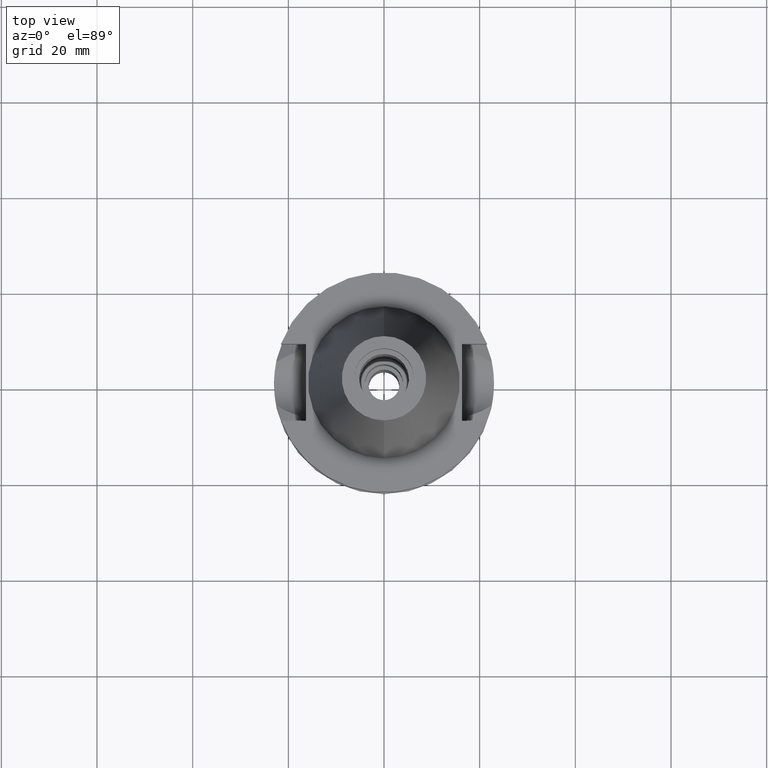
[diagram: clean part render]
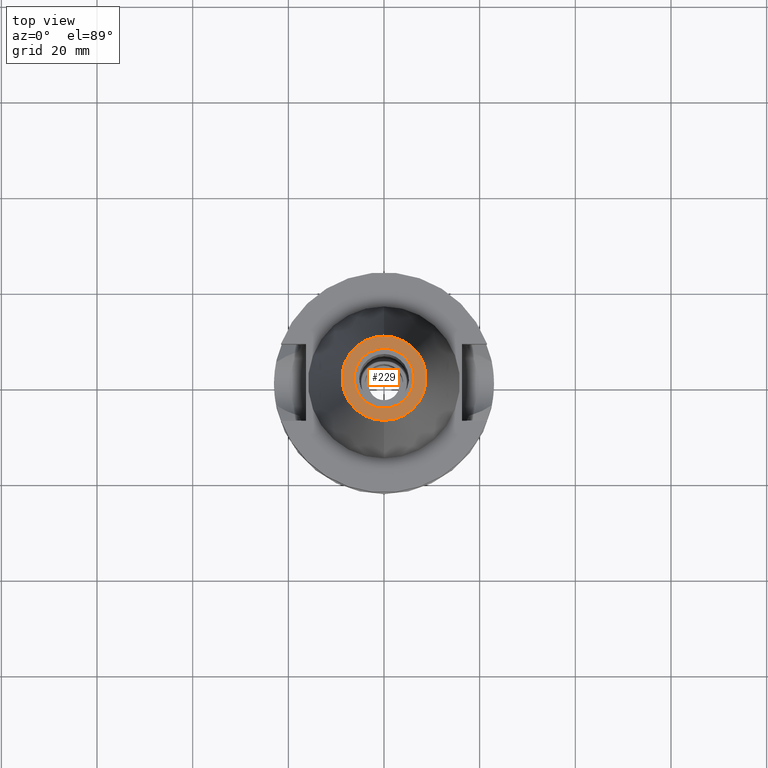
[diagram: same view with one face highlighted and labeled with its STEP entity id]
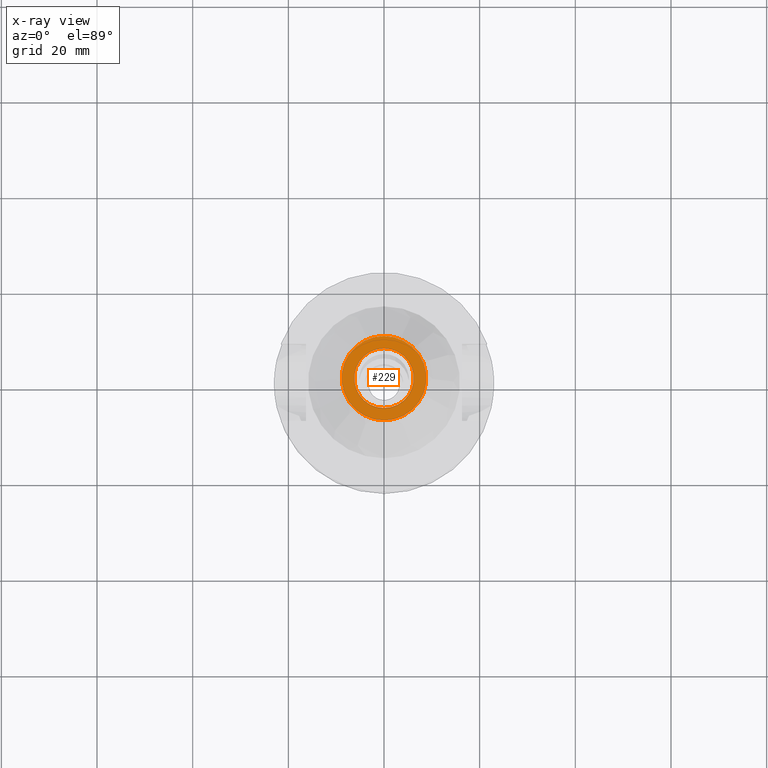
[diagram: x-ray of the same camera — body ghosted, the highlighted face saturated]
A machine part, top view. The second image highlights one B-rep face of the part: STEP entity #229.
The next image is the same camera in x-ray: the body ghosted, the highlighted face saturated — about 0% of this face is hidden behind the body in this view.
In plain terms, the highlighted planar face has unit normal (0, 0, -1).
Its self-contained STEP definition (entity closure, byte-faithful):
#98 = AXIS2_PLACEMENT_3D ( 'NONE', #1826, #1129, #231 ) ;
#102 = ORIENTED_EDGE ( 'NONE', *, *, #2976, .F. ) ;
#108 = AXIS2_PLACEMENT_3D ( 'NONE', #299, #2816, #1502 ) ;
#132 = DIRECTION ( 'NONE',  ( 0.0000000000000000000, 0.0000000000000000000, -1.000000000000000000 ) ) ;
#179 = DIRECTION ( 'NONE',  ( 0.0000000000000000000, 0.0000000000000000000, -1.000000000000000000 ) ) ;
#229 = ADVANCED_FACE ( 'NONE', ( #2047, #1028 ), #2543, .F. ) ;
#231 = DIRECTION ( 'NONE',  ( 0.0000000000000000000, 1.000000000000000000, 0.0000000000000000000 ) ) ;
#299 = CARTESIAN_POINT ( 'NONE',  ( 0.0000000000000000000, 1.897222821238999746E-14, 48.39999999999999858 ) ) ;
#317 = DIRECTION ( 'NONE',  ( 0.0000000000000000000, -1.000000000000000000, 0.0000000000000000000 ) ) ;
#407 = DIRECTION ( 'NONE',  ( 0.0000000000000000000, -1.000000000000000000, 0.0000000000000000000 ) ) ;
#583 = AXIS2_PLACEMENT_3D ( 'NONE', #1491, #1202, #984 ) ;
#642 = ORIENTED_EDGE ( 'NONE', *, *, #2684, .F. ) ;
#745 = CARTESIAN_POINT ( 'NONE',  ( 0.0000000000000000000, 8.816791732783000768, 48.39999999999999858 ) ) ;
#806 = EDGE_LOOP ( 'NONE', ( #2805, #642 ) ) ;
#984 = DIRECTION ( 'NONE',  ( 0.0000000000000000000, -1.000000000000000000, 0.0000000000000000000 ) ) ;
#1028 = FACE_BOUND ( 'NONE', #1573, .T. ) ;
#1070 = CIRCLE ( 'NONE', #583, 6.250000000000000000 ) ;
#1079 = AXIS2_PLACEMENT_3D ( 'NONE', #2653, #132, #317 ) ;
#1129 = DIRECTION ( 'NONE',  ( 0.0000000000000000000, 0.0000000000000000000, -1.000000000000000000 ) ) ;
#1202 = DIRECTION ( 'NONE',  ( 0.0000000000000000000, 0.0000000000000000000, 1.000000000000000000 ) ) ;
#1261 = EDGE_CURVE ( 'NONE', #2577, #2720, #1908, .T. ) ;
#1447 = EDGE_CURVE ( 'NONE', #2233, #1544, #1070, .T. ) ;
#1489 = CIRCLE ( 'NONE', #108, 6.250000000000000000 ) ;
#1491 = CARTESIAN_POINT ( 'NONE',  ( 0.0000000000000000000, 1.897222821238999746E-14, 48.39999999999999858 ) ) ;
#1502 = DIRECTION ( 'NONE',  ( 0.0000000000000000000, 1.000000000000000000, 0.0000000000000000000 ) ) ;
#1544 = VERTEX_POINT ( 'NONE', #2151 ) ;
#1573 = EDGE_LOOP ( 'NONE', ( #102, #1852 ) ) ;
#1826 = CARTESIAN_POINT ( 'NONE',  ( 0.0000000000000000000, 1.521011324540999938E-14, 48.39999999999999858 ) ) ;
#1852 = ORIENTED_EDGE ( 'NONE', *, *, #1447, .F. ) ;
#1908 = CIRCLE ( 'NONE', #98, 8.816791732783000768 ) ;
#1954 = CARTESIAN_POINT ( 'NONE',  ( 0.0000000000000000000, 1.817375849934999910E-14, 48.39999999999999858 ) ) ;
#1965 = CIRCLE ( 'NONE', #1079, 8.816791732783000768 ) ;
#2047 = FACE_OUTER_BOUND ( 'NONE', #806, .T. ) ;
#2151 = CARTESIAN_POINT ( 'NONE',  ( 0.0000000000000000000, 6.250000000000000000, 48.39999999999999858 ) ) ;
#2233 = VERTEX_POINT ( 'NONE', #2405 ) ;
#2357 = AXIS2_PLACEMENT_3D ( 'NONE', #1954, #179, #407 ) ;
#2405 = CARTESIAN_POINT ( 'NONE',  ( 0.0000000000000000000, -6.250000000000000000, 48.39999999999999858 ) ) ;
#2416 = CARTESIAN_POINT ( 'NONE',  ( 0.0000000000000000000, -8.816791732783000768, 48.39999999999999858 ) ) ;
#2543 = PLANE ( 'NONE',  #2357 ) ;
#2577 = VERTEX_POINT ( 'NONE', #745 ) ;
#2653 = CARTESIAN_POINT ( 'NONE',  ( 0.0000000000000000000, 1.521011324540999938E-14, 48.39999999999999858 ) ) ;
#2684 = EDGE_CURVE ( 'NONE', #2720, #2577, #1965, .T. ) ;
#2720 = VERTEX_POINT ( 'NONE', #2416 ) ;
#2805 = ORIENTED_EDGE ( 'NONE', *, *, #1261, .F. ) ;
#2816 = DIRECTION ( 'NONE',  ( 0.0000000000000000000, 0.0000000000000000000, 1.000000000000000000 ) ) ;
#2976 = EDGE_CURVE ( 'NONE', #1544, #2233, #1489, .T. ) ;